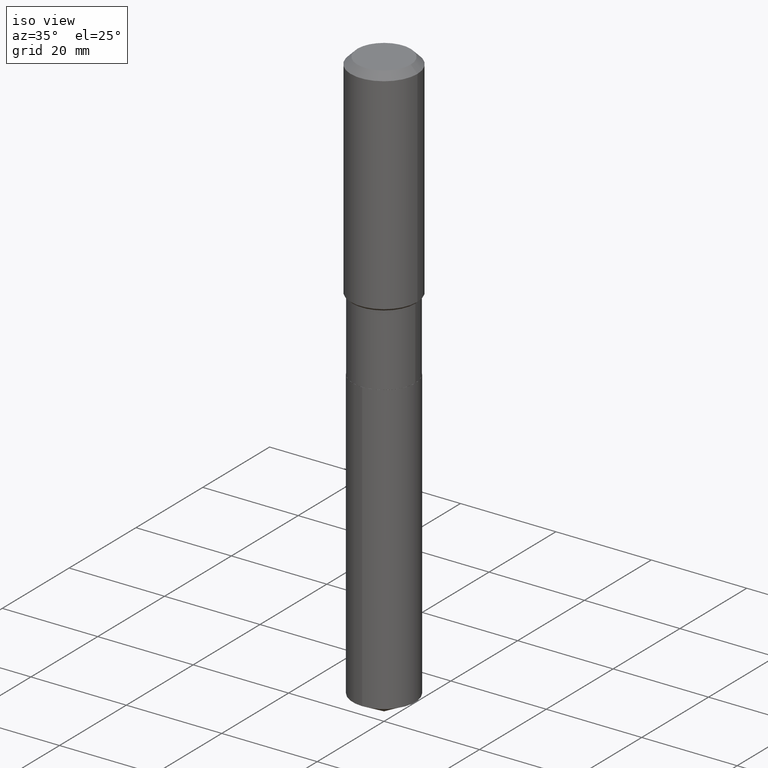
[diagram: clean part render]
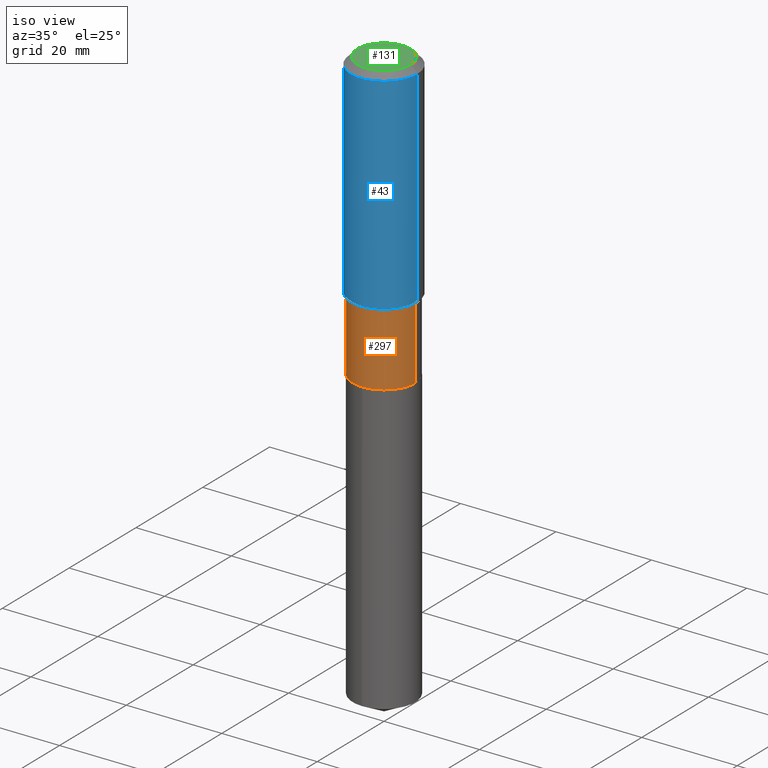
[diagram: same view with three faces highlighted in distinct colors, each labeled with its STEP entity id]
A machine part, iso view with three faces highlighted in distinct colors.
Their STEP definitions:

[orange] entity #297 — the highlighted cylindrical surface (partial cylindrical patch) has radius 6.5481 mm, axis along (-0, 0, 1).
#8 = CARTESIAN_POINT ( 'NONE',  ( -0.2577999999999999181, 1.831779172789537697E-15, -1.268101466267714406E-29 ) ) ;
#14 = CYLINDRICAL_SURFACE ( 'NONE', #202, 0.2577999999999999181 ) ;
#15 = DIRECTION ( 'NONE',  ( -2.445468806185136597E-29, 3.491481338843145583E-15, 1.000000000000000000 ) ) ;
#39 = DIRECTION ( 'NONE',  ( -2.445468806185136877E-29, 3.491481338843145188E-15, 1.000000000000000000 ) ) ;
#44 = CARTESIAN_POINT ( 'NONE',  ( 0.2577999999999999181, -1.800207778307519167E-15, 1.257078372800191925E-29 ) ) ;
#45 = EDGE_LOOP ( 'NONE', ( #348, #153, #213, #274 ) ) ;
#46 = CARTESIAN_POINT ( 'NONE',  ( 0.2577999999999999181, -7.989556747674760100E-15, -1.772699999999999276 ) ) ;
#64 = EDGE_CURVE ( 'NONE', #397, #237, #289, .T. ) ;
#80 = EDGE_CURVE ( 'NONE', #97, #135, #126, .T. ) ;
#81 = DIRECTION ( 'NONE',  ( 1.000000000000000000, -6.982962677686267499E-15, 4.876176775795936353E-29 ) ) ;
#90 = CARTESIAN_POINT ( 'NONE',  ( -0.2578000000000000291, -5.391746569143044548E-15, -2.365099999999999536 ) ) ;
#97 = VERTEX_POINT ( 'NONE', #244 ) ;
#117 = VECTOR ( 'NONE', #39, 39.37007874015748143 ) ;
#126 = CIRCLE ( 'NONE', #194, 0.2577999999999999181 ) ;
#135 = VERTEX_POINT ( 'NONE', #46 ) ;
#148 = AXIS2_PLACEMENT_3D ( 'NONE', #191, #342, #279 ) ;
#153 = ORIENTED_EDGE ( 'NONE', *, *, #64, .T. ) ;
#159 = CARTESIAN_POINT ( 'NONE',  ( 4.335082552724389788E-29, -6.189348969367241722E-15, -1.772699999999999276 ) ) ;
#177 = EDGE_CURVE ( 'NONE', #397, #97, #300, .T. ) ;
#191 = CARTESIAN_POINT ( 'NONE',  ( 5.783778273508465535E-29, -8.257702514497921981E-15, -2.365099999999999536 ) ) ;
#194 = AXIS2_PLACEMENT_3D ( 'NONE', #159, #15, #385 ) ;
#202 = AXIS2_PLACEMENT_3D ( 'NONE', #425, #277, #81 ) ;
#213 = ORIENTED_EDGE ( 'NONE', *, *, #284, .T. ) ;
#230 = LINE ( 'NONE', #44, #294 ) ;
#237 = VERTEX_POINT ( 'NONE', #271 ) ;
#244 = CARTESIAN_POINT ( 'NONE',  ( -0.2577999999999999181, -5.391746569143044548E-15, -1.772699999999999276 ) ) ;
#271 = CARTESIAN_POINT ( 'NONE',  ( 0.2577999999999999736, -1.005791029280544115E-14, -2.365099999999999536 ) ) ;
#274 = ORIENTED_EDGE ( 'NONE', *, *, #80, .F. ) ;
#277 = DIRECTION ( 'NONE',  ( -2.445468806185136597E-29, 3.491481338843145583E-15, 1.000000000000000000 ) ) ;
#279 = DIRECTION ( 'NONE',  ( 1.000000000000000000, -6.982962677686264344E-15, 0.000000000000000000 ) ) ;
#284 = EDGE_CURVE ( 'NONE', #237, #135, #230, .T. ) ;
#289 = CIRCLE ( 'NONE', #148, 0.2577999999999999736 ) ;
#294 = VECTOR ( 'NONE', #384, 39.37007874015748143 ) ;
#297 = ADVANCED_FACE ( 'NONE', ( #347 ), #14, .T. ) ;
#300 = LINE ( 'NONE', #8, #117 ) ;
#342 = DIRECTION ( 'NONE',  ( -2.445468806185136597E-29, 3.491481338843145583E-15, 1.000000000000000000 ) ) ;
#347 = FACE_OUTER_BOUND ( 'NONE', #45, .T. ) ;
#348 = ORIENTED_EDGE ( 'NONE', *, *, #177, .F. ) ;
#384 = DIRECTION ( 'NONE',  ( -2.445468806185136877E-29, 3.491481338843145188E-15, 1.000000000000000000 ) ) ;
#385 = DIRECTION ( 'NONE',  ( 1.000000000000000000, -6.982962677686265922E-15, 0.000000000000000000 ) ) ;
#397 = VERTEX_POINT ( 'NONE', #90 ) ;
#425 = CARTESIAN_POINT ( 'NONE',  ( 0.000000000000000000, 0.000000000000000000, 0.000000000000000000 ) ) ;

[blue] entity #43 — the highlighted cylindrical surface (partial cylindrical patch) has radius 7.0002 mm, axis along (-0, 0, 1).
#42 = VECTOR ( 'NONE', #359, 39.37007874015748143 ) ;
#43 = ADVANCED_FACE ( 'NONE', ( #281 ), #391, .T. ) ;
#58 = DIRECTION ( 'NONE',  ( -2.445468806185136877E-29, 3.491481338843145188E-15, 1.000000000000000000 ) ) ;
#75 = VERTEX_POINT ( 'NONE', #150 ) ;
#95 = DIRECTION ( 'NONE',  ( 1.000000000000000000, -6.982962677686265922E-15, 0.000000000000000000 ) ) ;
#103 = ORIENTED_EDGE ( 'NONE', *, *, #346, .F. ) ;
#106 = AXIS2_PLACEMENT_3D ( 'NONE', #229, #270, #201 ) ;
#127 = EDGE_CURVE ( 'NONE', #462, #382, #269, .T. ) ;
#132 = DIRECTION ( 'NONE',  ( -2.445468806185136597E-29, 3.491481338843145583E-15, 1.000000000000000000 ) ) ;
#150 = CARTESIAN_POINT ( 'NONE',  ( -0.2756000000000002337, -4.168944821780994872E-15, -1.754899999999999016 ) ) ;
#178 = LINE ( 'NONE', #255, #461 ) ;
#199 = VERTEX_POINT ( 'NONE', #375 ) ;
#201 = DIRECTION ( 'NONE',  ( 1.000000000000000000, -6.982962677686267499E-15, 4.876176775795935793E-29 ) ) ;
#224 = CARTESIAN_POINT ( 'NONE',  ( 1.347942405969256063E-30, -1.924504513970354330E-16, -0.05512000000000035621 ) ) ;
#229 = CARTESIAN_POINT ( 'NONE',  ( 0.000000000000000000, 0.000000000000000000, 0.000000000000000000 ) ) ;
#231 = ORIENTED_EDGE ( 'NONE', *, *, #366, .T. ) ;
#254 = DIRECTION ( 'NONE',  ( 1.000000000000000000, -6.982962677686267499E-15, 0.000000000000000000 ) ) ;
#255 = CARTESIAN_POINT ( 'NONE',  ( 0.2756000000000001227, -1.924504513970336137E-15, 1.343874319409360548E-29 ) ) ;
#263 = EDGE_LOOP ( 'NONE', ( #103, #343, #231, #344 ) ) ;
#269 = CIRCLE ( 'NONE', #278, 0.2756000000000000116 ) ;
#270 = DIRECTION ( 'NONE',  ( -2.445468806185136597E-29, 3.491481338843145583E-15, 1.000000000000000000 ) ) ;
#278 = AXIS2_PLACEMENT_3D ( 'NONE', #224, #379, #95 ) ;
#281 = FACE_OUTER_BOUND ( 'NONE', #263, .T. ) ;
#288 = CARTESIAN_POINT ( 'NONE',  ( 4.291553207974293790E-29, -6.127200601535833039E-15, -1.754899999999999016 ) ) ;
#296 = LINE ( 'NONE', #322, #42 ) ;
#322 = CARTESIAN_POINT ( 'NONE',  ( -0.2756000000000001227, 1.958255779754836984E-15, -1.355658510874252567E-29 ) ) ;
#343 = ORIENTED_EDGE ( 'NONE', *, *, #389, .T. ) ;
#344 = ORIENTED_EDGE ( 'NONE', *, *, #127, .F. ) ;
#346 = EDGE_CURVE ( 'NONE', #75, #462, #296, .T. ) ;
#358 = CARTESIAN_POINT ( 'NONE',  ( 0.2756000000000000116, -2.116954965367370658E-15, -0.05512000000000035621 ) ) ;
#359 = DIRECTION ( 'NONE',  ( -2.445468806185136877E-29, 3.491481338843145188E-15, 1.000000000000000000 ) ) ;
#366 = EDGE_CURVE ( 'NONE', #199, #382, #178, .T. ) ;
#375 = CARTESIAN_POINT ( 'NONE',  ( 0.2756000000000002337, -8.051705115506168782E-15, -1.754899999999999016 ) ) ;
#379 = DIRECTION ( 'NONE',  ( -2.445468806185136597E-29, 3.491481338843145583E-15, 1.000000000000000000 ) ) ;
#382 = VERTEX_POINT ( 'NONE', #358 ) ;
#389 = EDGE_CURVE ( 'NONE', #75, #199, #410, .T. ) ;
#391 = CYLINDRICAL_SURFACE ( 'NONE', #106, 0.2756000000000001227 ) ;
#410 = CIRCLE ( 'NONE', #470, 0.2756000000000002337 ) ;
#461 = VECTOR ( 'NONE', #58, 39.37007874015748143 ) ;
#462 = VERTEX_POINT ( 'NONE', #477 ) ;
#470 = AXIS2_PLACEMENT_3D ( 'NONE', #288, #132, #254 ) ;
#477 = CARTESIAN_POINT ( 'NONE',  ( -0.2756000000000000116, -1.201569746711596994E-15, -0.05512000000000035621 ) ) ;

[green] entity #131 — the highlighted planar face has unit normal (0, -0, -1).
#3 = AXIS2_PLACEMENT_3D ( 'NONE', #380, #146, #4 ) ;
#4 = DIRECTION ( 'NONE',  ( 1.000000000000000000, -6.982962677686266711E-15, 4.876132675269083677E-29 ) ) ;
#10 = EDGE_LOOP ( 'NONE', ( #302, #115 ) ) ;
#41 = AXIS2_PLACEMENT_3D ( 'NONE', #454, #73, #225 ) ;
#56 = CARTESIAN_POINT ( 'NONE',  ( -0.2204800000000000093, 1.635828836874783961E-15, 3.860086710901350968E-18 ) ) ;
#68 = VERTEX_POINT ( 'NONE', #472 ) ;
#73 = DIRECTION ( 'NONE',  ( -2.445468806185136597E-29, 3.491481338843145583E-15, 1.000000000000000000 ) ) ;
#76 = DIRECTION ( 'NONE',  ( -1.000000000000000000, 6.982962677686265922E-15, -4.876176775795935793E-29 ) ) ;
#115 = ORIENTED_EDGE ( 'NONE', *, *, #227, .T. ) ;
#131 = ADVANCED_FACE ( 'NONE', ( #260 ), #179, .F. ) ;
#146 = DIRECTION ( 'NONE',  ( -2.445468806185136597E-29, 3.491481338843145583E-15, 1.000000000000000000 ) ) ;
#179 = PLANE ( 'NONE',  #450 ) ;
#185 = CIRCLE ( 'NONE', #41, 0.2204800000000000093 ) ;
#207 = EDGE_CURVE ( 'NONE', #305, #68, #215, .T. ) ;
#215 = CIRCLE ( 'NONE', #3, 0.2204800000000000093 ) ;
#225 = DIRECTION ( 'NONE',  ( 1.000000000000000000, -6.982962677686266711E-15, 4.876132675269083677E-29 ) ) ;
#227 = EDGE_CURVE ( 'NONE', #68, #305, #185, .T. ) ;
#260 = FACE_OUTER_BOUND ( 'NONE', #10, .T. ) ;
#302 = ORIENTED_EDGE ( 'NONE', *, *, #207, .T. ) ;
#305 = VERTEX_POINT ( 'NONE', #56 ) ;
#330 = CARTESIAN_POINT ( 'NONE',  ( -4.719860820353095009E-47, 6.738710358733624243E-33, 1.930043355456227170E-18 ) ) ;
#380 = CARTESIAN_POINT ( 'NONE',  ( -9.439721640706190018E-47, 1.347742071746724849E-32, 3.860086710912454339E-18 ) ) ;
#412 = DIRECTION ( 'NONE',  ( 2.438088387897960049E-29, -3.491481338843145188E-15, -1.000000000000000000 ) ) ;
#450 = AXIS2_PLACEMENT_3D ( 'NONE', #330, #412, #76 ) ;
#454 = CARTESIAN_POINT ( 'NONE',  ( -9.439721640706190018E-47, 1.347742071746724849E-32, 3.860086710912454339E-18 ) ) ;
#472 = CARTESIAN_POINT ( 'NONE',  ( 0.2204800000000000093, -1.797903149065768707E-15, 3.860086710924123164E-18 ) ) ;